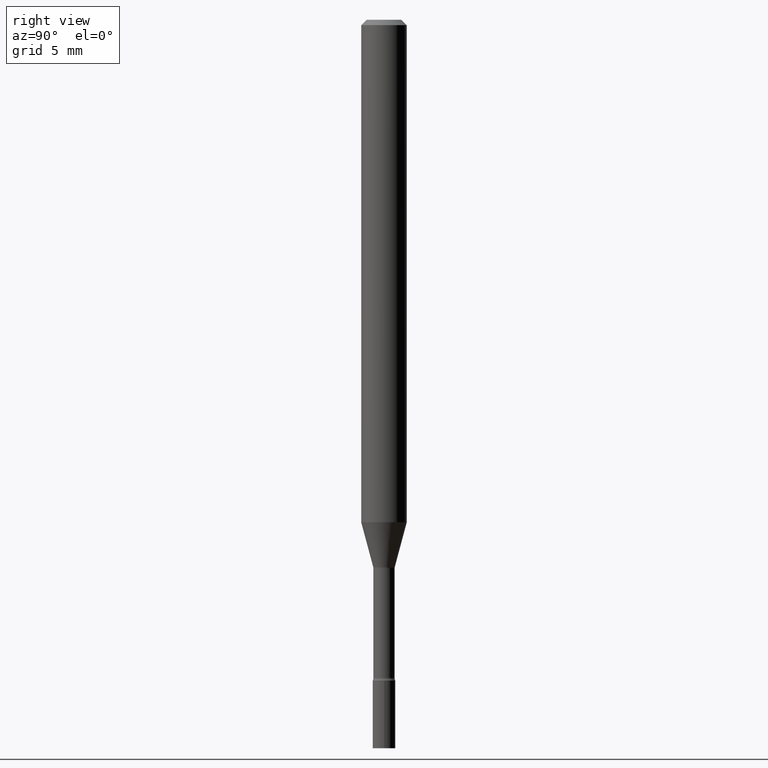
[diagram: clean part render]
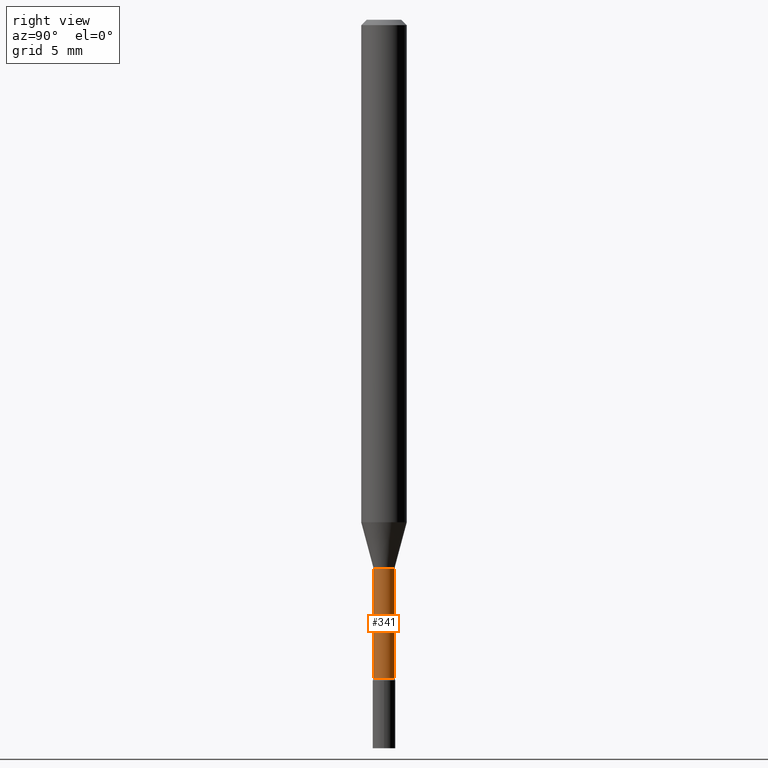
[diagram: same view with one face highlighted and labeled with its STEP entity id]
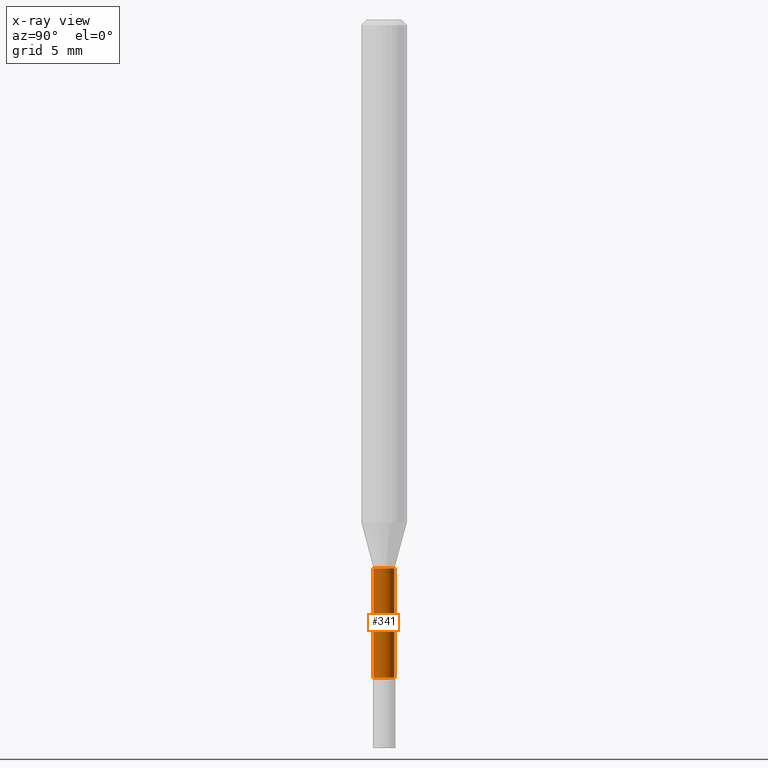
[diagram: x-ray of the same camera — body ghosted, the highlighted face saturated]
A machine part, right view. The second image highlights one B-rep face of the part: STEP entity #341.
The next image is the same camera in x-ray: the body ghosted, the highlighted face saturated — about 0% of this face is hidden behind the body in this view.
In plain terms, the highlighted cylindrical surface (edge-blend (fillet) strip) has radius 0.7404 mm, axis along (-0, 0, 1).
Its self-contained STEP definition (entity closure, byte-faithful):
#3 = VERTEX_POINT ( 'NONE', #327 ) ;
#25 = DIRECTION ( 'NONE',  ( -6.982962677686266711E-15, -1.000000000000000000, 3.491481724708022239E-15 ) ) ;
#26 = CARTESIAN_POINT ( 'NONE',  ( 2.071232074740693438E-16, 0.02915000000000002311, -1.017766922752389249E-16 ) ) ;
#30 = LINE ( 'NONE', #418, #362 ) ;
#65 = CIRCLE ( 'NONE', #276, 0.02915000000000004046 ) ;
#67 = FACE_OUTER_BOUND ( 'NONE', #439, .T. ) ;
#68 = ORIENTED_EDGE ( 'NONE', *, *, #421, .T. ) ;
#99 = DIRECTION ( 'NONE',  ( -2.445468536737133447E-29, 3.491481724708021844E-15, 1.000000000000000000 ) ) ;
#107 = DIRECTION ( 'NONE',  ( -2.445468536737133447E-29, 3.491481724708021844E-15, 1.000000000000000000 ) ) ;
#108 = AXIS2_PLACEMENT_3D ( 'NONE', #475, #99, #25 ) ;
#109 = DIRECTION ( 'NONE',  ( -2.445468536737133447E-29, 3.491481724708021844E-15, 1.000000000000000000 ) ) ;
#118 = EDGE_CURVE ( 'NONE', #483, #3, #30, .T. ) ;
#147 = CIRCLE ( 'NONE', #240, 0.02915000000000000577 ) ;
#154 = CARTESIAN_POINT ( 'NONE',  ( -2.035533620545107573E-16, -0.02915000000000635139, -1.806783525791634704 ) ) ;
#191 = DIRECTION ( 'NONE',  ( -2.445468536737133447E-29, 3.491481724708022239E-15, 1.000000000000000000 ) ) ;
#206 = VECTOR ( 'NONE', #191, 39.37007874015748143 ) ;
#240 = AXIS2_PLACEMENT_3D ( 'NONE', #517, #107, #391 ) ;
#250 = ORIENTED_EDGE ( 'NONE', *, *, #118, .F. ) ;
#256 = CARTESIAN_POINT ( 'NONE',  ( 2.136957277798946103E-16, 0.02914999999999373301, -1.806783525791634704 ) ) ;
#276 = AXIS2_PLACEMENT_3D ( 'NONE', #350, #109, #510 ) ;
#287 = VERTEX_POINT ( 'NONE', #288 ) ;
#288 = CARTESIAN_POINT ( 'NONE',  ( 2.071232074741134953E-16, 0.02914999999999474956, -1.505974787463811193 ) ) ;
#317 = ORIENTED_EDGE ( 'NONE', *, *, #437, .F. ) ;
#327 = CARTESIAN_POINT ( 'NONE',  ( -2.035533620545178817E-16, -0.02915000000000526545, -1.505974787463811193 ) ) ;
#341 = ADVANCED_FACE ( 'NONE', ( #67 ), #394, .T. ) ;
#350 = CARTESIAN_POINT ( 'NONE',  ( 4.418432265018427708E-29, -6.308351660805017310E-15, -1.806783525791634704 ) ) ;
#362 = VECTOR ( 'NONE', #392, 39.37007874015748143 ) ;
#379 = EDGE_CURVE ( 'NONE', #483, #434, #65, .T. ) ;
#384 = LINE ( 'NONE', #26, #206 ) ;
#391 = DIRECTION ( 'NONE',  ( -6.982962677686266711E-15, -1.000000000000000000, 0.000000000000000000 ) ) ;
#392 = DIRECTION ( 'NONE',  ( -2.445468536737133447E-29, 3.491481724708022239E-15, 1.000000000000000000 ) ) ;
#394 = CYLINDRICAL_SURFACE ( 'NONE', #108, 0.02915000000000002311 ) ;
#418 = CARTESIAN_POINT ( 'NONE',  ( -2.035533620545548349E-16, -0.02915000000000002311, 1.017766922752389249E-16 ) ) ;
#421 = EDGE_CURVE ( 'NONE', #434, #287, #384, .T. ) ;
#434 = VERTEX_POINT ( 'NONE', #256 ) ;
#437 = EDGE_CURVE ( 'NONE', #3, #287, #147, .T. ) ;
#439 = EDGE_LOOP ( 'NONE', ( #462, #68, #317, #250 ) ) ;
#462 = ORIENTED_EDGE ( 'NONE', *, *, #379, .T. ) ;
#475 = CARTESIAN_POINT ( 'NONE',  ( 0.000000000000000000, 0.000000000000000000, 0.000000000000000000 ) ) ;
#483 = VERTEX_POINT ( 'NONE', #154 ) ;
#510 = DIRECTION ( 'NONE',  ( -6.982962677686266711E-15, -1.000000000000000000, 0.000000000000000000 ) ) ;
#517 = CARTESIAN_POINT ( 'NONE',  ( 3.682813959862141921E-29, -5.258083448300944094E-15, -1.505974787463811193 ) ) ;